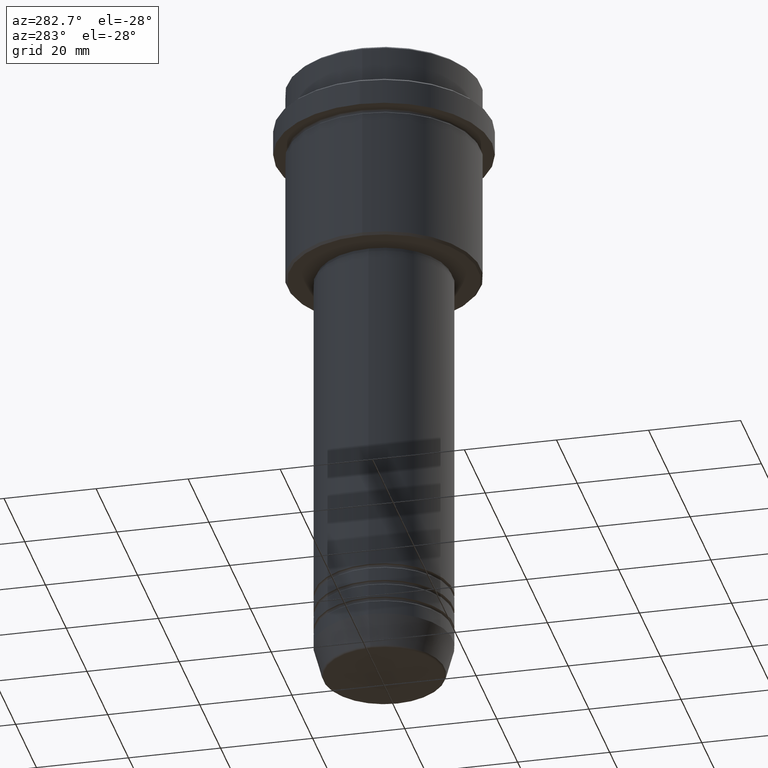
[diagram: clean part render]
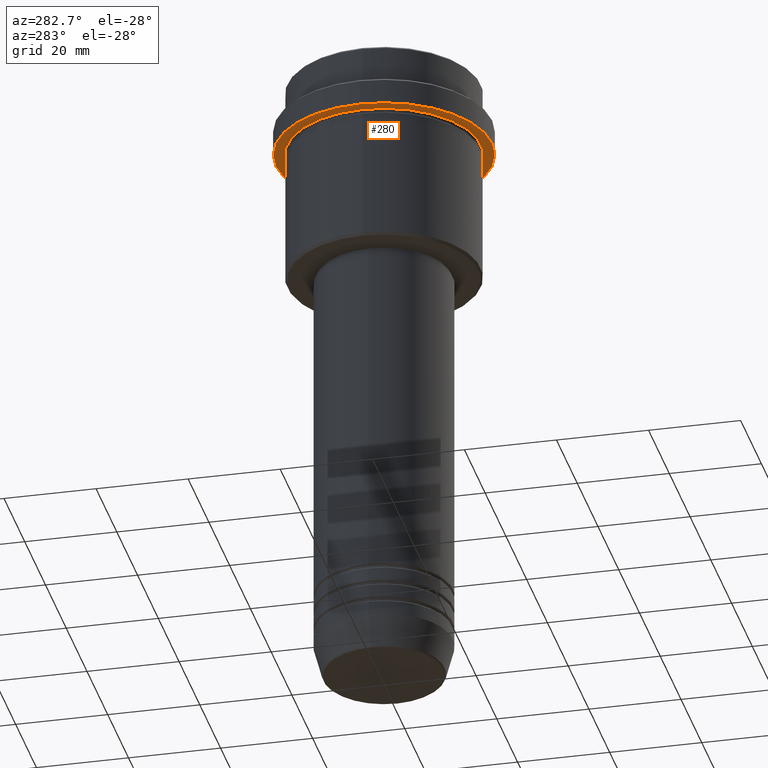
[diagram: same view with one face highlighted and labeled with its STEP entity id]
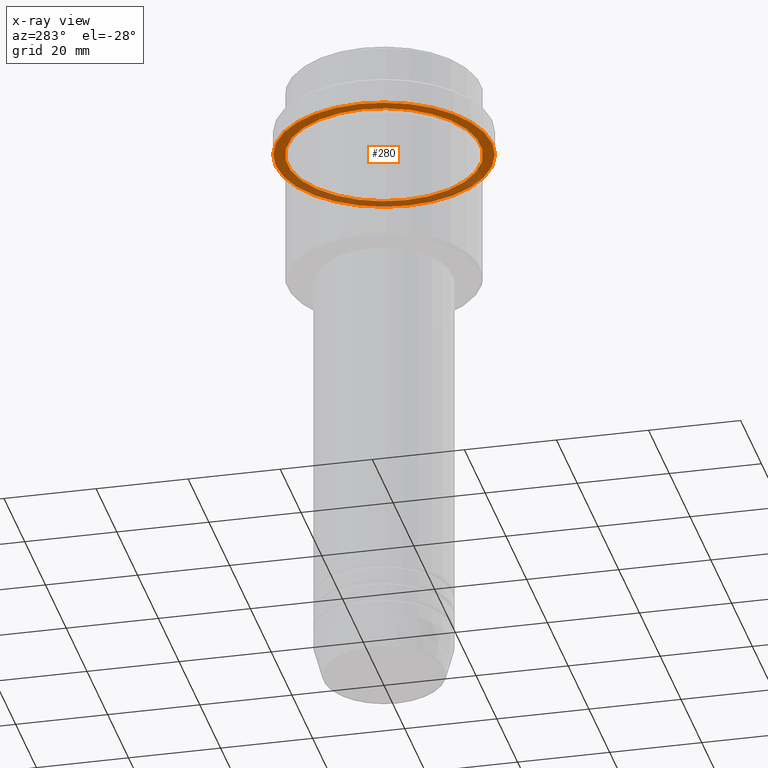
[diagram: x-ray of the same camera — body ghosted, the highlighted face saturated]
A machine part, auxiliary view. The second image highlights one B-rep face of the part: STEP entity #280.
The next image is the same camera in x-ray: the body ghosted, the highlighted face saturated — about 37% of this face is hidden behind the body in this view.
In plain terms, the highlighted planar face has unit normal (0, 0, -1).
Its self-contained STEP definition (entity closure, byte-faithful):
#17 = CIRCLE ( 'NONE', #819, 20.99999999999999289 ) ;
#67 = PLANE ( 'NONE',  #841 ) ;
#73 = DIRECTION ( 'NONE',  ( -1.000000000000000000, 0.000000000000000000, -0.000000000000000000 ) ) ;
#102 = DIRECTION ( 'NONE',  ( -0.000000000000000000, -0.000000000000000000, 1.000000000000000000 ) ) ;
#113 = DIRECTION ( 'NONE',  ( 1.000000000000000000, 0.000000000000000000, 0.000000000000000000 ) ) ;
#171 = VERTEX_POINT ( 'NONE', #477 ) ;
#173 = CARTESIAN_POINT ( 'NONE',  ( 23.50000000000000355, 0.000000000000000000, -15.00000000000000000 ) ) ;
#184 = VERTEX_POINT ( 'NONE', #173 ) ;
#189 = CARTESIAN_POINT ( 'NONE',  ( 0.000000000000000000, 23.50000000000000355, -15.00000000000000178 ) ) ;
#280 = ADVANCED_FACE ( 'NONE', ( #852, #399 ), #67, .T. ) ;
#292 = DIRECTION ( 'NONE',  ( -0.000000000000000000, -0.000000000000000000, 1.000000000000000000 ) ) ;
#295 = EDGE_LOOP ( 'NONE', ( #1375, #347 ) ) ;
#299 = DIRECTION ( 'NONE',  ( 0.000000000000000000, 0.000000000000000000, -1.000000000000000000 ) ) ;
#311 = DIRECTION ( 'NONE',  ( -1.000000000000000000, 0.000000000000000000, 0.000000000000000000 ) ) ;
#347 = ORIENTED_EDGE ( 'NONE', *, *, #1329, .F. ) ;
#384 = CIRCLE ( 'NONE', #564, 20.99999999999999289 ) ;
#399 = FACE_OUTER_BOUND ( 'NONE', #295, .T. ) ;
#451 = CIRCLE ( 'NONE', #707, 23.50000000000000355 ) ;
#477 = CARTESIAN_POINT ( 'NONE',  ( -20.99999999999999289, 0.000000000000000000, -15.00000000000000178 ) ) ;
#502 = VERTEX_POINT ( 'NONE', #1266 ) ;
#564 = AXIS2_PLACEMENT_3D ( 'NONE', #862, #292, #1277 ) ;
#668 = DIRECTION ( 'NONE',  ( 1.000000000000000000, 0.000000000000000000, 0.000000000000000000 ) ) ;
#669 = ORIENTED_EDGE ( 'NONE', *, *, #1110, .T. ) ;
#707 = AXIS2_PLACEMENT_3D ( 'NONE', #901, #102, #113 ) ;
#732 = EDGE_CURVE ( 'NONE', #736, #171, #17, .T. ) ;
#736 = VERTEX_POINT ( 'NONE', #1300 ) ;
#749 = CARTESIAN_POINT ( 'NONE',  ( 0.000000000000000000, 0.000000000000000000, -15.00000000000000000 ) ) ;
#819 = AXIS2_PLACEMENT_3D ( 'NONE', #859, #1296, #311 ) ;
#841 = AXIS2_PLACEMENT_3D ( 'NONE', #189, #299, #73 ) ;
#847 = CIRCLE ( 'NONE', #1167, 23.50000000000000355 ) ;
#852 = FACE_BOUND ( 'NONE', #1108, .T. ) ;
#859 = CARTESIAN_POINT ( 'NONE',  ( 0.000000000000000000, 0.000000000000000000, -15.00000000000000178 ) ) ;
#862 = CARTESIAN_POINT ( 'NONE',  ( 0.000000000000000000, 0.000000000000000000, -15.00000000000000178 ) ) ;
#901 = CARTESIAN_POINT ( 'NONE',  ( 0.000000000000000000, 0.000000000000000000, -15.00000000000000000 ) ) ;
#1017 = ORIENTED_EDGE ( 'NONE', *, *, #732, .T. ) ;
#1085 = DIRECTION ( 'NONE',  ( -0.000000000000000000, -0.000000000000000000, 1.000000000000000000 ) ) ;
#1108 = EDGE_LOOP ( 'NONE', ( #669, #1017 ) ) ;
#1110 = EDGE_CURVE ( 'NONE', #171, #736, #384, .T. ) ;
#1167 = AXIS2_PLACEMENT_3D ( 'NONE', #749, #1085, #668 ) ;
#1266 = CARTESIAN_POINT ( 'NONE',  ( -23.50000000000000711, 2.877919977996281109E-15, -15.00000000000000000 ) ) ;
#1277 = DIRECTION ( 'NONE',  ( -1.000000000000000000, 0.000000000000000000, 0.000000000000000000 ) ) ;
#1285 = EDGE_CURVE ( 'NONE', #184, #502, #451, .T. ) ;
#1296 = DIRECTION ( 'NONE',  ( -0.000000000000000000, -0.000000000000000000, 1.000000000000000000 ) ) ;
#1300 = CARTESIAN_POINT ( 'NONE',  ( 20.99999999999999289, 2.571758278209440872E-15, -15.00000000000000178 ) ) ;
#1329 = EDGE_CURVE ( 'NONE', #502, #184, #847, .T. ) ;
#1375 = ORIENTED_EDGE ( 'NONE', *, *, #1285, .F. ) ;